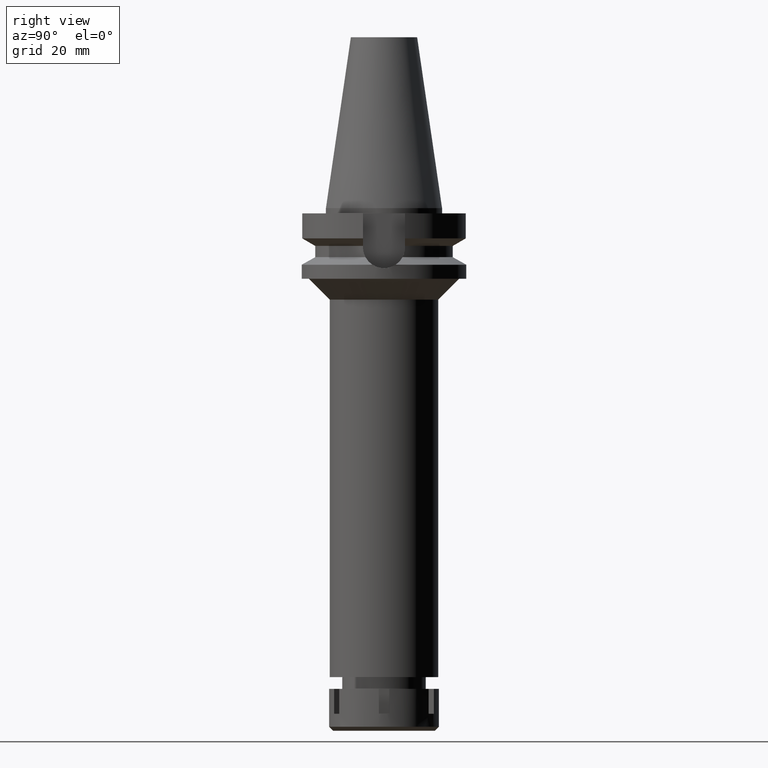
[diagram: clean part render]
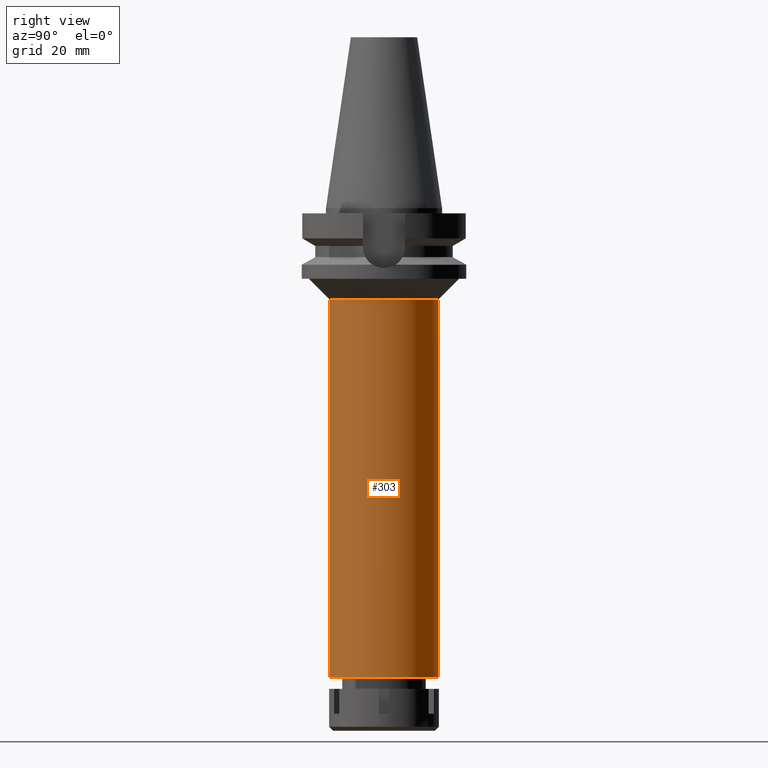
[diagram: same view with one face highlighted and labeled with its STEP entity id]
A machine part, right view. The second image highlights one B-rep face of the part: STEP entity #303.
In plain terms, the highlighted cylindrical surface (partial cylindrical patch) has radius 20.75 mm, axis along (0, 0, -1).
Its self-contained STEP definition (entity closure, byte-faithful):
#19 = ORIENTED_EDGE ( 'NONE', *, *, #918, .T. ) ;
#204 = ORIENTED_EDGE ( 'NONE', *, *, #1720, .T. ) ;
#216 = ORIENTED_EDGE ( 'NONE', *, *, #2848, .T. ) ;
#293 = CARTESIAN_POINT ( 'NONE',  ( 0.0000000000000000000, -20.75000000000000000, -35.00000000000000000 ) ) ;
#303 = ADVANCED_FACE ( 'NONE', ( #331 ), #2851, .T. ) ;
#331 = FACE_OUTER_BOUND ( 'NONE', #810, .T. ) ;
#347 = DIRECTION ( 'NONE',  ( 0.0000000000000000000, 0.0000000000000000000, -1.000000000000000000 ) ) ;
#496 = CARTESIAN_POINT ( 'NONE',  ( 0.0000000000000000000, 20.75000000000000000, -35.00000000000000000 ) ) ;
#586 = CARTESIAN_POINT ( 'NONE',  ( 0.0000000000000000000, 0.0000000000000000000, -35.00000000000000000 ) ) ;
#810 = EDGE_LOOP ( 'NONE', ( #216, #19, #204, #2040 ) ) ;
#856 = AXIS2_PLACEMENT_3D ( 'NONE', #586, #936, #1998 ) ;
#888 = LINE ( 'NONE', #1136, #3596 ) ;
#918 = EDGE_CURVE ( 'NONE', #1630, #2372, #2245, .T. ) ;
#936 = DIRECTION ( 'NONE',  ( 0.0000000000000000000, 0.0000000000000000000, -1.000000000000000000 ) ) ;
#944 = CARTESIAN_POINT ( 'NONE',  ( 0.0000000000000000000, 2.183177848839999781E-14, 78.27000000000001023 ) ) ;
#959 = EDGE_CURVE ( 'NONE', #3455, #2020, #888, .T. ) ;
#1136 = CARTESIAN_POINT ( 'NONE',  ( 0.0000000000000000000, 20.75000000000000000, -35.00000000000000000 ) ) ;
#1144 = DIRECTION ( 'NONE',  ( 0.0000000000000000000, -1.000000000000000000, 0.0000000000000000000 ) ) ;
#1215 = DIRECTION ( 'NONE',  ( 0.0000000000000000000, 0.0000000000000000000, -1.000000000000000000 ) ) ;
#1392 = CIRCLE ( 'NONE', #856, 20.75000000000000000 ) ;
#1630 = VERTEX_POINT ( 'NONE', #2968 ) ;
#1720 = EDGE_CURVE ( 'NONE', #2372, #2020, #1786, .T. ) ;
#1786 = CIRCLE ( 'NONE', #2824, 20.75000000000000000 ) ;
#1791 = VECTOR ( 'NONE', #1215, 1000.000000000000000 ) ;
#1945 = AXIS2_PLACEMENT_3D ( 'NONE', #944, #347, #3161 ) ;
#1998 = DIRECTION ( 'NONE',  ( 0.0000000000000000000, 1.000000000000000000, 0.0000000000000000000 ) ) ;
#2020 = VERTEX_POINT ( 'NONE', #2390 ) ;
#2040 = ORIENTED_EDGE ( 'NONE', *, *, #959, .F. ) ;
#2245 = LINE ( 'NONE', #293, #1791 ) ;
#2372 = VERTEX_POINT ( 'NONE', #2857 ) ;
#2390 = CARTESIAN_POINT ( 'NONE',  ( 0.0000000000000000000, 20.75000000000000000, -179.5000000000000000 ) ) ;
#2467 = CARTESIAN_POINT ( 'NONE',  ( 0.0000000000000000000, 2.183177848839999781E-14, -179.5000000000000000 ) ) ;
#2824 = AXIS2_PLACEMENT_3D ( 'NONE', #2467, #3584, #1144 ) ;
#2848 = EDGE_CURVE ( 'NONE', #3455, #1630, #1392, .T. ) ;
#2851 = CYLINDRICAL_SURFACE ( 'NONE', #1945, 20.75000000000000000 ) ;
#2857 = CARTESIAN_POINT ( 'NONE',  ( 0.0000000000000000000, -20.75000000000000000, -179.5000000000000000 ) ) ;
#2968 = CARTESIAN_POINT ( 'NONE',  ( 0.0000000000000000000, -20.75000000000000000, -35.00000000000000000 ) ) ;
#3161 = DIRECTION ( 'NONE',  ( 0.0000000000000000000, -1.000000000000000000, 0.0000000000000000000 ) ) ;
#3164 = DIRECTION ( 'NONE',  ( 0.0000000000000000000, 0.0000000000000000000, -1.000000000000000000 ) ) ;
#3455 = VERTEX_POINT ( 'NONE', #496 ) ;
#3584 = DIRECTION ( 'NONE',  ( 0.0000000000000000000, 0.0000000000000000000, 1.000000000000000000 ) ) ;
#3596 = VECTOR ( 'NONE', #3164, 1000.000000000000000 ) ;